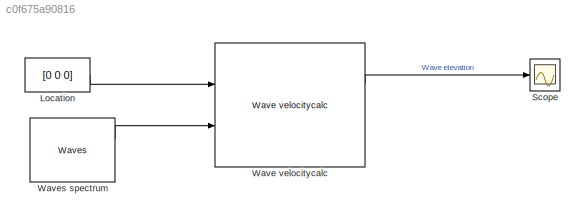
MODEL slx_c0f675a90816
KIND model
CONFIG AbsTol = auto
CONFIG EnableMultiTasking = on
CONFIG FixedStep = .1
CONFIG MaxStep = auto
CONFIG MinStep = auto
CONFIG RelTol = 1e-3
CONFIG SampleTimeConstraint = Unconstrained
CONFIG SolverName = ode3
CONFIG StartTime = 0.0
CONFIG StopTime = 100
BLOCK [Constant] Location
  Value = [0 0 0]
BLOCK [Scope] Scope
  Floating = off
  NumInputPorts = 1
  Ports = [1]
  ScopeSpecificationString = Simulink.scopes.TimeScopeBlockCfg('CurrentConfiguration', extmgr.ConfigurationSet(extmgr.Configuration('Core','General UI',true),extmgr.Configuration('Core','Source UI',true),extmgr.Configuration('Sources','WiredSimulink',true,'DataLoggingSaveFormat','StructureWithTime','DataLoggingLimitDataPoints',true,'DataLoggingDecimation','1','DataLoggingDecimateData',true),extmgr.Configuration('Visuals','Tim...<+1735ch>
BLOCK [Reference] Wave velocitycalc   REF=mssSimulink/Environment/Waves/Wave velocitycalc
  Ports = [2, 2]
  SourceBlock = mssSimulink/Environment/Waves/Wave velocitycalc
  SourceType = Wave velocitycalc
BLOCK [Reference] Waves spectrum  REF=mssSimulink/Environment/Waves/Waves
  Ports = [0, 2]
  SourceBlock = mssSimulink/Environment/Waves/Waves
  SourceType = Waves
LINE Location:1 -> Wave velocitycalc :1
LINE Wave velocitycalc :1 -> Scope:1
LINE Waves spectrum:1 -> Wave velocitycalc :2
